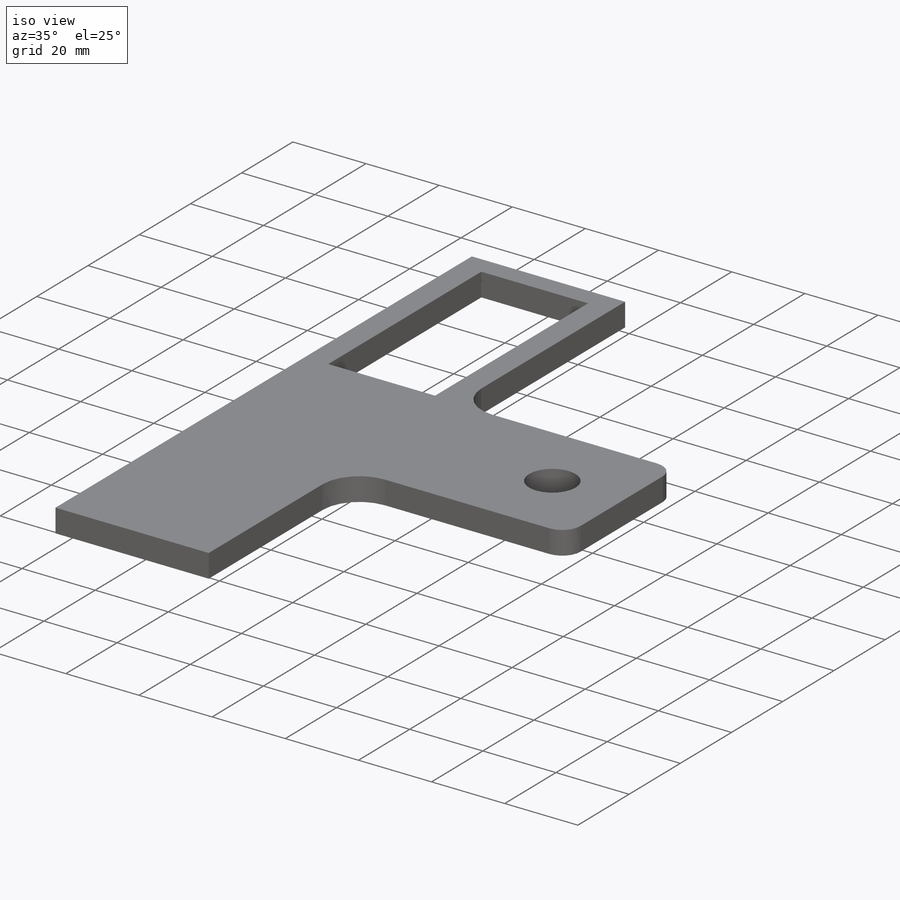
[diagram: iso view]
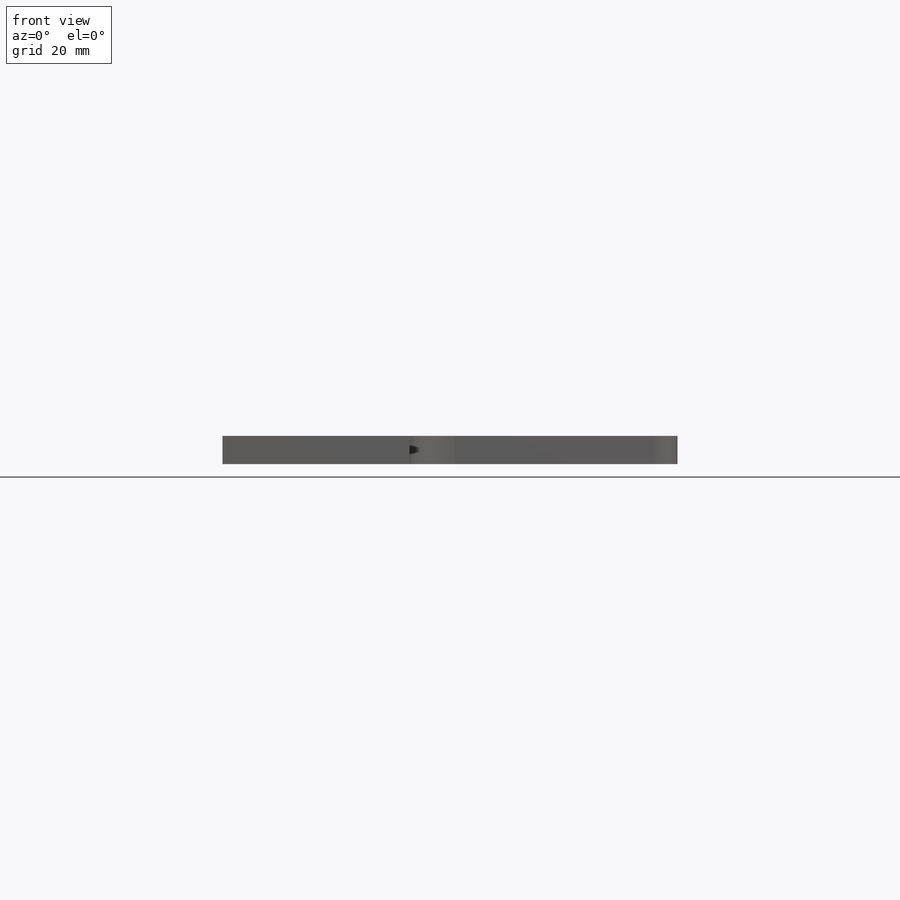
[diagram: front view]
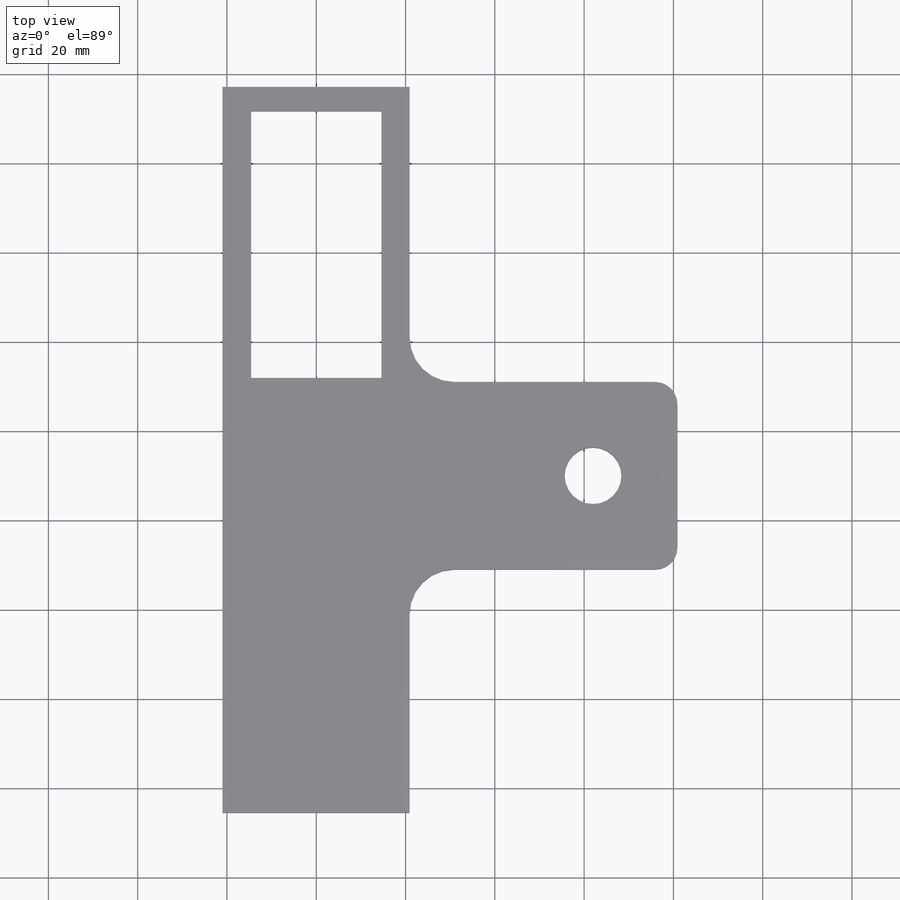
[diagram: top view]
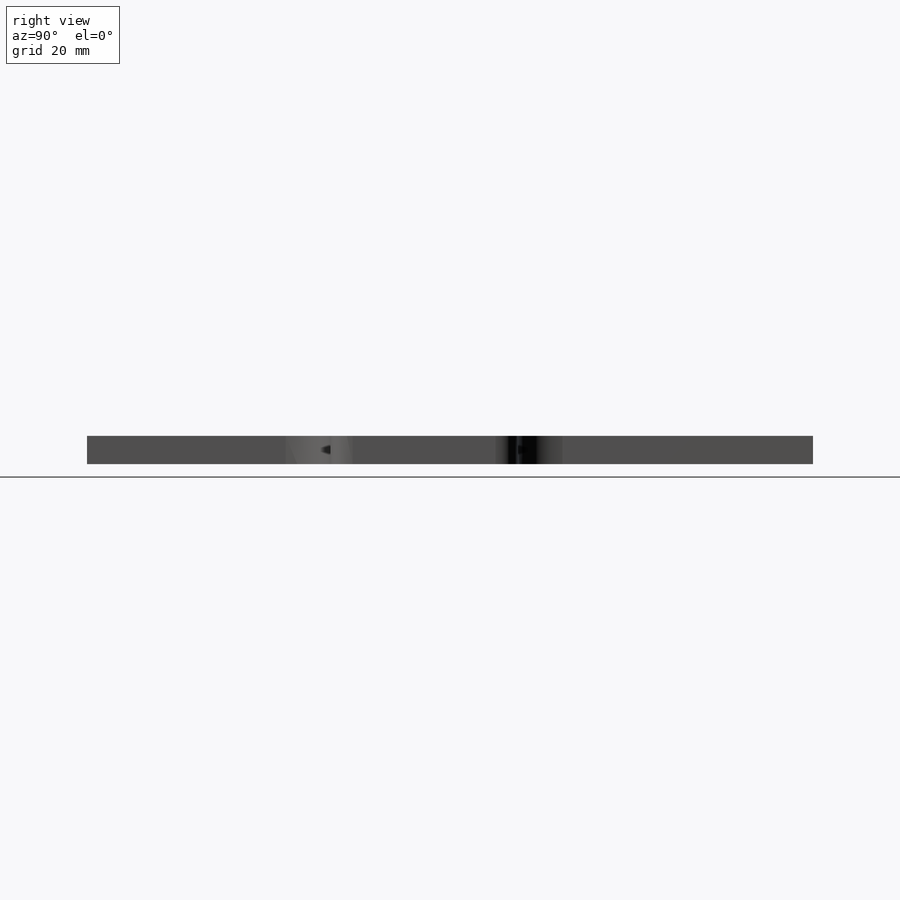
[diagram: right view]
SOLIDWORKS PART (.sldprt)
format: sldprt  version: not decoded by parser v0  size: 179,712 bytes
history: native  units: mm
features: sketch x2, fillet x2, material x1, extrude x1, cut_extrude x1 (+12 scaffold rows collapsed)
feature tree (19):
  scaffold x12  (default folders/planes/origin — collapsed)
  material  "1060 Alloy"
  sketch  "Sketch1"  dims[D1=17.1mm D2=162.6mm D3=66.1mm D4=42.0mm D5=21.0mm D6=41.91mm D7=60.0mm]
  sketch  "Sketch2"  dims[D5=12.7mm D1=5.45mm D2=6.4mm D3=29.2mm D4=59.75mm D6=83.0mm D7=87.1mm]
  extrude  "Boss-Extrude1"  Depth=6.35mm
  cut_extrude  "Cut-Extrude1"  [1 undecoded]
  fillet  "Fillet1"  Radius=10mm
  fillet  "Fillet2"  Radius=5mm
decode coverage: 5 of 6 modeling features carry decoded parameters
note: 1 parameter value undecoded
note: suppression state not decoded; provenance and decode notes live in map.json
